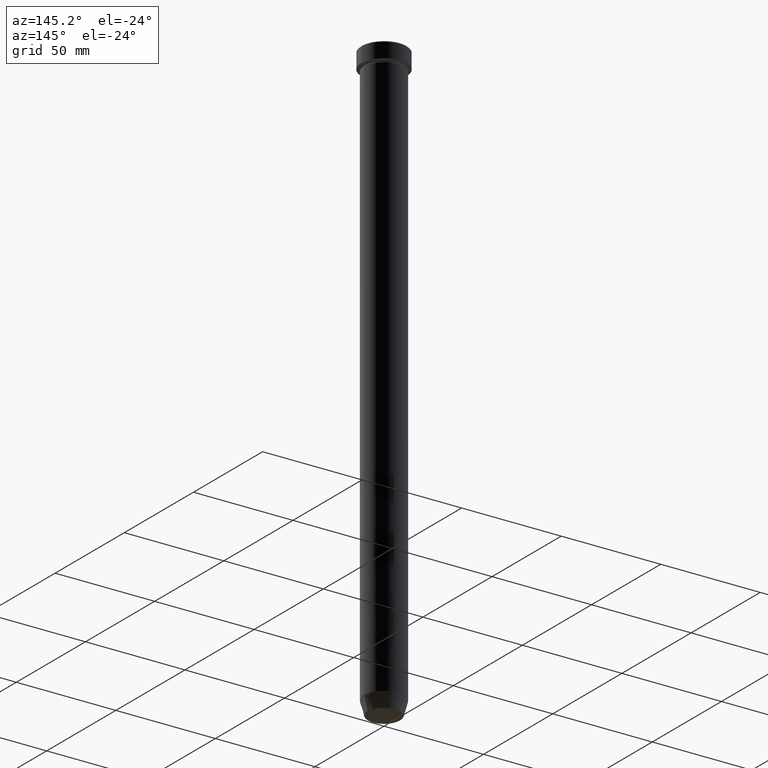
[diagram: clean part render]
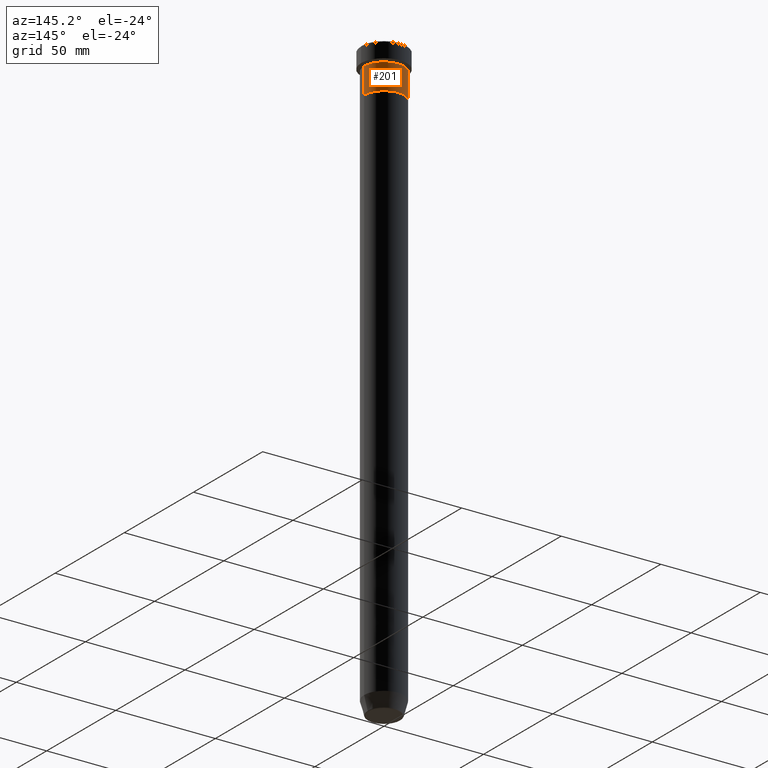
[diagram: same view with one face highlighted and labeled with its STEP entity id]
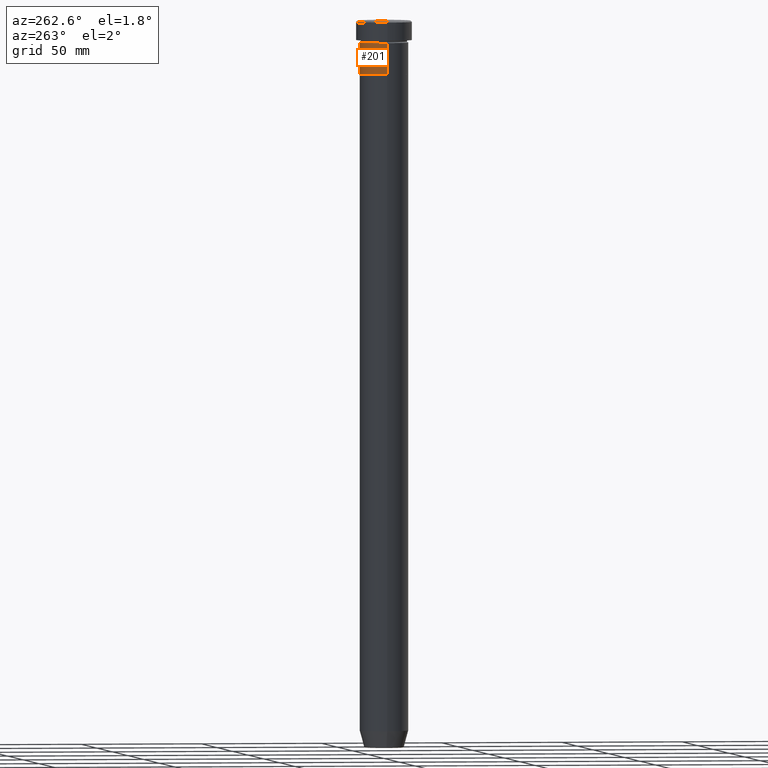
[diagram: same view with one face highlighted and labeled with its STEP entity id]
A machine part, auxiliary view. The second image highlights one B-rep face of the part: STEP entity #201.
A second angle (auxiliary view) of the same face is appended — the face is thin or edge-on in the first view.
In plain terms, the highlighted cylindrical surface (edge-blend (fillet) strip) has radius 10 mm, axis along (-0, -0, 1).
Its self-contained STEP definition (entity closure, byte-faithful):
#19 = EDGE_CURVE ( 'NONE', #339, #137, #154, .T. ) ;
#29 = ORIENTED_EDGE ( 'NONE', *, *, #218, .F. ) ;
#59 = CARTESIAN_POINT ( 'NONE',  ( 10.00000000000000000, 0.000000000000000000, -9.000000000000001776 ) ) ;
#94 = DIRECTION ( 'NONE',  ( -0.000000000000000000, -0.000000000000000000, 1.000000000000000000 ) ) ;
#102 = DIRECTION ( 'NONE',  ( -0.000000000000000000, -0.000000000000000000, 1.000000000000000000 ) ) ;
#109 = DIRECTION ( 'NONE',  ( 1.000000000000000000, 0.000000000000000000, 0.000000000000000000 ) ) ;
#124 = EDGE_CURVE ( 'NONE', #339, #278, #383, .T. ) ;
#137 = VERTEX_POINT ( 'NONE', #59 ) ;
#149 = DIRECTION ( 'NONE',  ( -0.000000000000000000, -0.000000000000000000, 1.000000000000000000 ) ) ;
#154 = LINE ( 'NONE', #338, #294 ) ;
#184 = VERTEX_POINT ( 'NONE', #193 ) ;
#189 = DIRECTION ( 'NONE',  ( -0.000000000000000000, -0.000000000000000000, 1.000000000000000000 ) ) ;
#193 = CARTESIAN_POINT ( 'NONE',  ( -10.00000000000000000, 1.224646799147353256E-15, -9.000000000000001776 ) ) ;
#196 = CYLINDRICAL_SURFACE ( 'NONE', #562, 10.00000000000000000 ) ;
#201 = ADVANCED_FACE ( 'NONE', ( #395 ), #196, .T. ) ;
#204 = CARTESIAN_POINT ( 'NONE',  ( -10.00000000000000000, 1.224646799147353256E-15, -22.00000000000000000 ) ) ;
#218 = EDGE_CURVE ( 'NONE', #137, #184, #314, .T. ) ;
#221 = EDGE_CURVE ( 'NONE', #278, #184, #561, .T. ) ;
#234 = CARTESIAN_POINT ( 'NONE',  ( 0.000000000000000000, 0.000000000000000000, -22.00000000000000000 ) ) ;
#278 = VERTEX_POINT ( 'NONE', #204 ) ;
#294 = VECTOR ( 'NONE', #94, 1000.000000000000000 ) ;
#299 = CARTESIAN_POINT ( 'NONE',  ( -10.00000000000000000, 1.224646799147353256E-15, 0.000000000000000000 ) ) ;
#304 = AXIS2_PLACEMENT_3D ( 'NONE', #234, #102, #477 ) ;
#314 = CIRCLE ( 'NONE', #463, 10.00000000000000000 ) ;
#322 = VECTOR ( 'NONE', #149, 1000.000000000000000 ) ;
#338 = CARTESIAN_POINT ( 'NONE',  ( 10.00000000000000000, 0.000000000000000000, 0.000000000000000000 ) ) ;
#339 = VERTEX_POINT ( 'NONE', #585 ) ;
#345 = CARTESIAN_POINT ( 'NONE',  ( 0.000000000000000000, 0.000000000000000000, -9.000000000000001776 ) ) ;
#383 = CIRCLE ( 'NONE', #304, 10.00000000000000000 ) ;
#395 = FACE_OUTER_BOUND ( 'NONE', #558, .T. ) ;
#463 = AXIS2_PLACEMENT_3D ( 'NONE', #345, #189, #109 ) ;
#477 = DIRECTION ( 'NONE',  ( 1.000000000000000000, 0.000000000000000000, 0.000000000000000000 ) ) ;
#497 = ORIENTED_EDGE ( 'NONE', *, *, #221, .T. ) ;
#511 = ORIENTED_EDGE ( 'NONE', *, *, #19, .F. ) ;
#532 = DIRECTION ( 'NONE',  ( 1.000000000000000000, 0.000000000000000000, 0.000000000000000000 ) ) ;
#548 = ORIENTED_EDGE ( 'NONE', *, *, #124, .T. ) ;
#558 = EDGE_LOOP ( 'NONE', ( #548, #497, #29, #511 ) ) ;
#561 = LINE ( 'NONE', #299, #322 ) ;
#562 = AXIS2_PLACEMENT_3D ( 'NONE', #566, #567, #532 ) ;
#566 = CARTESIAN_POINT ( 'NONE',  ( 0.000000000000000000, 0.000000000000000000, 0.000000000000000000 ) ) ;
#567 = DIRECTION ( 'NONE',  ( -0.000000000000000000, -0.000000000000000000, 1.000000000000000000 ) ) ;
#585 = CARTESIAN_POINT ( 'NONE',  ( 10.00000000000000000, 0.000000000000000000, -22.00000000000000000 ) ) ;